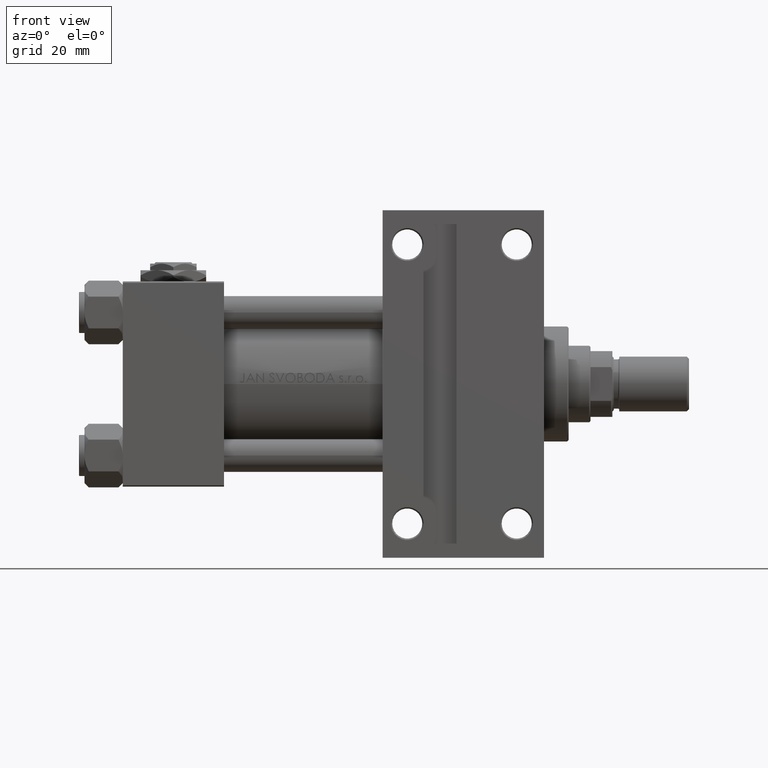
[diagram: clean part render]
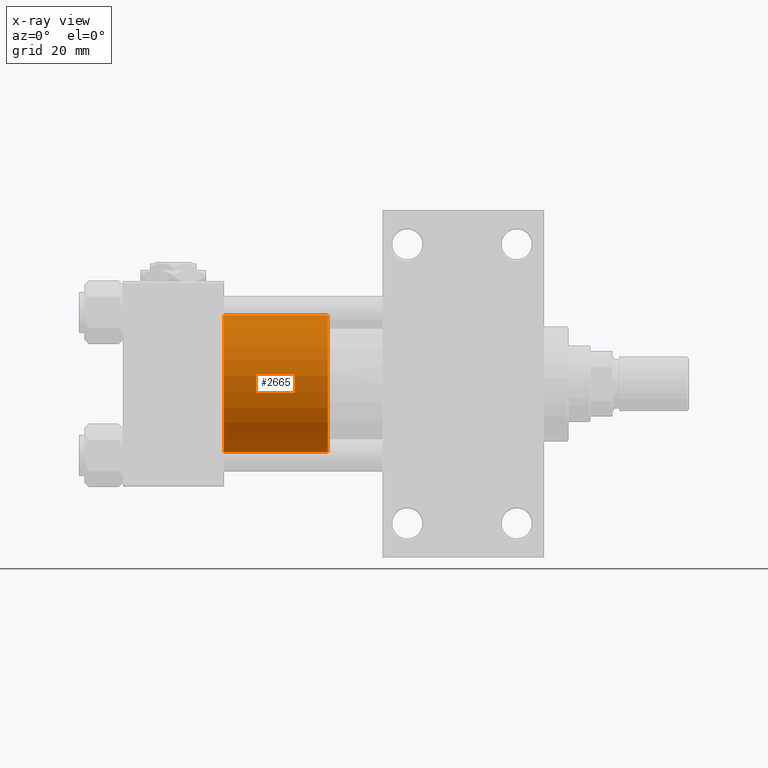
[diagram: x-ray — body ghosted, one internal face saturated and labeled with its STEP entity id]
A machine part, front view, then the same camera in x-ray: the body is ghosted and one INTERNAL B-rep face — a face not visible from any outside direction — is saturated and labeled: STEP entity #2665.
In plain terms, the highlighted cylindrical surface (partial cylindrical patch) has radius 25 mm, axis along (-1, 0, 0).
Its self-contained STEP definition (entity closure, byte-faithful):
#402 = VERTEX_POINT ( 'NONE', #11975 ) ;
#2646 = ORIENTED_EDGE ( 'NONE', *, *, #19591, .T. ) ;
#2665 = ADVANCED_FACE ( 'NONE', ( #15175 ), #27101, .T. ) ;
#2952 = DIRECTION ( 'NONE',  ( -0.000000000000000000, -0.000000000000000000, -1.000000000000000000 ) ) ;
#4511 = DIRECTION ( 'NONE',  ( 1.000000000000000000, 0.000000000000000000, 0.000000000000000000 ) ) ;
#4945 = CARTESIAN_POINT ( 'NONE',  ( -25.00000000000000000, 0.000000000000000000, 38.00000000000000000 ) ) ;
#5826 = AXIS2_PLACEMENT_3D ( 'NONE', #42321, #38016, #7807 ) ;
#6758 = LINE ( 'NONE', #45062, #41245 ) ;
#7687 = ORIENTED_EDGE ( 'NONE', *, *, #9975, .F. ) ;
#7807 = DIRECTION ( 'NONE',  ( -1.000000000000000000, 0.000000000000000000, 0.000000000000000000 ) ) ;
#8124 = AXIS2_PLACEMENT_3D ( 'NONE', #46036, #27276, #33884 ) ;
#9975 = EDGE_CURVE ( 'NONE', #402, #30716, #48284, .T. ) ;
#10213 = CARTESIAN_POINT ( 'NONE',  ( -25.00000000000000000, 0.000000000000000000, 0.000000000000000000 ) ) ;
#11087 = VECTOR ( 'NONE', #26353, 1000.000000000000000 ) ;
#11304 = EDGE_CURVE ( 'NONE', #30716, #22406, #49935, .T. ) ;
#11740 = VERTEX_POINT ( 'NONE', #16569 ) ;
#11975 = CARTESIAN_POINT ( 'NONE',  ( 25.00000000000000000, 3.061616997868383043E-15, 38.00000000000000000 ) ) ;
#15175 = FACE_OUTER_BOUND ( 'NONE', #17592, .T. ) ;
#15939 = CARTESIAN_POINT ( 'NONE',  ( 0.000000000000000000, 0.000000000000000000, 38.00000000000000000 ) ) ;
#16569 = CARTESIAN_POINT ( 'NONE',  ( 25.00000000000000000, 3.061616997868383043E-15, 0.000000000000000000 ) ) ;
#17592 = EDGE_LOOP ( 'NONE', ( #7687, #2646, #18636, #32763 ) ) ;
#18636 = ORIENTED_EDGE ( 'NONE', *, *, #33163, .T. ) ;
#19591 = EDGE_CURVE ( 'NONE', #402, #11740, #6758, .T. ) ;
#22040 = CARTESIAN_POINT ( 'NONE',  ( -25.00000000000000000, 0.000000000000000000, 38.00000000000000000 ) ) ;
#22406 = VERTEX_POINT ( 'NONE', #10213 ) ;
#26353 = DIRECTION ( 'NONE',  ( -0.000000000000000000, -0.000000000000000000, -1.000000000000000000 ) ) ;
#27101 = CYLINDRICAL_SURFACE ( 'NONE', #5826, 25.00000000000000000 ) ;
#27276 = DIRECTION ( 'NONE',  ( 0.000000000000000000, 0.000000000000000000, 1.000000000000000000 ) ) ;
#29157 = CIRCLE ( 'NONE', #8124, 25.00000000000000000 ) ;
#30716 = VERTEX_POINT ( 'NONE', #4945 ) ;
#31417 = DIRECTION ( 'NONE',  ( 0.000000000000000000, 0.000000000000000000, 1.000000000000000000 ) ) ;
#32763 = ORIENTED_EDGE ( 'NONE', *, *, #11304, .F. ) ;
#33163 = EDGE_CURVE ( 'NONE', #11740, #22406, #29157, .T. ) ;
#33884 = DIRECTION ( 'NONE',  ( 1.000000000000000000, 0.000000000000000000, 0.000000000000000000 ) ) ;
#38016 = DIRECTION ( 'NONE',  ( -0.000000000000000000, -0.000000000000000000, -1.000000000000000000 ) ) ;
#41245 = VECTOR ( 'NONE', #2952, 1000.000000000000000 ) ;
#42321 = CARTESIAN_POINT ( 'NONE',  ( 0.000000000000000000, 0.000000000000000000, 38.00000000000000000 ) ) ;
#44230 = AXIS2_PLACEMENT_3D ( 'NONE', #15939, #31417, #4511 ) ;
#45062 = CARTESIAN_POINT ( 'NONE',  ( 25.00000000000000000, 3.061616997868383043E-15, 38.00000000000000000 ) ) ;
#46036 = CARTESIAN_POINT ( 'NONE',  ( 0.000000000000000000, 0.000000000000000000, 0.000000000000000000 ) ) ;
#48284 = CIRCLE ( 'NONE', #44230, 25.00000000000000000 ) ;
#49935 = LINE ( 'NONE', #22040, #11087 ) ;